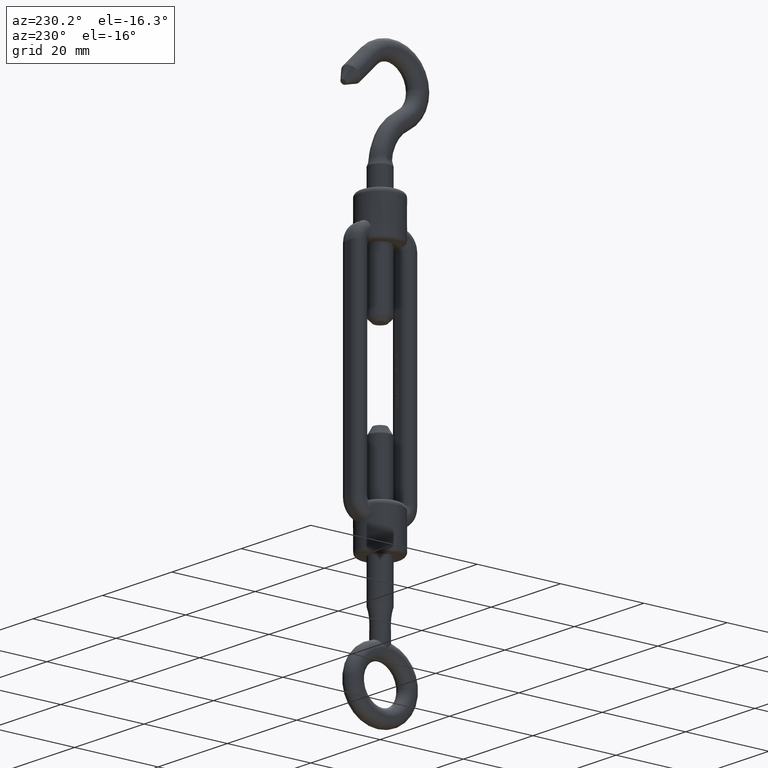
[diagram: clean part render]
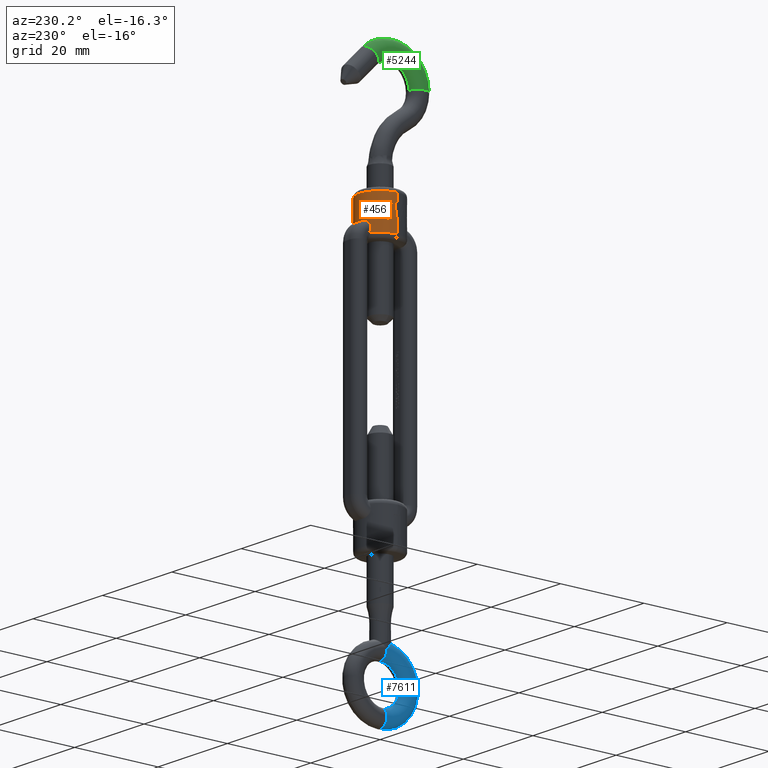
[diagram: same view with three faces highlighted in distinct colors, each labeled with its STEP entity id]
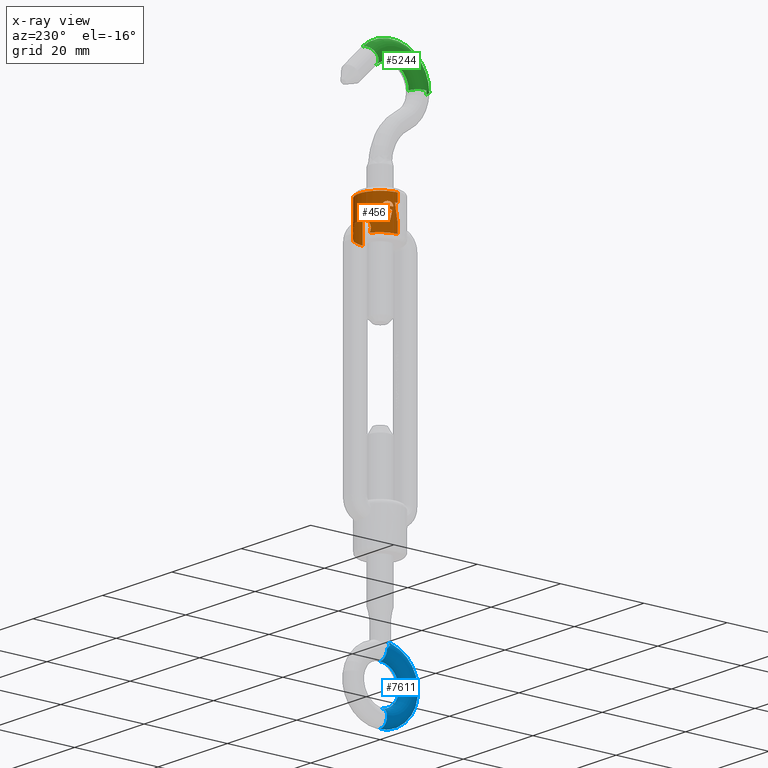
[diagram: x-ray of the same camera — body ghosted, the three highlighted faces saturated]
A machine part, auxiliary view with three faces highlighted in distinct colors.
The next image is the same camera in x-ray (body ghosted, the three faces saturated) — at least one of them is partly hidden behind the body in this view.
Their STEP definitions:

[orange] entity #456 — the highlighted cylindrical surface (edge-blend (fillet) strip) has radius 5 mm, axis along (0, 0, 1).
#20 = CARTESIAN_POINT ( 'NONE',  ( -4.547847931751720200, 2.077776820132446500, 31.45673397461589000 ) ) ;
#38 = ORIENTED_EDGE ( 'NONE', *, *, #16983, .T. ) ;
#65 = AXIS2_PLACEMENT_3D ( 'NONE', #8801, #17608, #13193 ) ;
#158 = VERTEX_POINT ( 'NONE', #13265 ) ;
#182 = CARTESIAN_POINT ( 'NONE',  ( -4.748390467567159800, 1.566137914590384200, 31.14743589743589800 ) ) ;
#192 = VERTEX_POINT ( 'NONE', #10391 ) ;
#217 = CARTESIAN_POINT ( 'NONE',  ( -4.923632694524686200, 0.8705406879679792300, 31.14743589743589800 ) ) ;
#344 = DIRECTION ( 'NONE',  ( 1.000000000000000000, 0.0000000000000000000, 0.0000000000000000000 ) ) ;
#376 = VERTEX_POINT ( 'NONE', #1325 ) ;
#379 = AXIS2_PLACEMENT_3D ( 'NONE', #6061, #1729, #16573 ) ;
#456 = ADVANCED_FACE ( 'NONE', ( #17706, #17224 ), #9224, .T. ) ;
#571 = CARTESIAN_POINT ( 'NONE',  ( 0.0000000000000000000, -6.736790278173455400E-017, 29.08333333333333200 ) ) ;
#585 = CARTESIAN_POINT ( 'NONE',  ( 2.233469516915348700, 4.474192552853914200, 27.98316289257686400 ) ) ;
#619 = CARTESIAN_POINT ( 'NONE',  ( -4.866443798449358500, 1.147921929633702400, 30.44210737179487200 ) ) ;
#661 = CARTESIAN_POINT ( 'NONE',  ( -4.686265706271695900, 1.743252603385065700, 30.47124703100446300 ) ) ;
#709 = CARTESIAN_POINT ( 'NONE',  ( -4.691561607814357200, 1.729080378535241100, 31.36180274351230000 ) ) ;
#739 = CARTESIAN_POINT ( 'NONE',  ( -4.500973887442484900, 2.177521877488870900, 32.07194595432542200 ) ) ;
#773 = B_SPLINE_CURVE_WITH_KNOTS ( 'NONE', 3,
 ( #12509, #5012, #15601, #17114, #2400, #4091, #1084, #14628, #2460, #2589, #889, #7115, #9880, #13094, #5611, #6925, #11592, #11463, #16121, #8498, #18933, #12836, #17373, #15992, #10146, #11397, #6989, #1022, #17505, #17636, #8626, #19126, #1158 ),
 .UNSPECIFIED., .F., .F.,
 ( 4, 2, 1, 2, 2, 2, 2, 2, 2, 2, 2, 2, 2, 1, 1, 2, 2, 4 ),
 ( 0.0000000000000000000, 0.03124999999999445600, 0.04687499999999193000, 0.05468749999999125700, 0.06249999999999057700, 0.1249999999999872000, 0.1874999999999838200, 0.2187499999999809600, 0.2499999999999780700, 0.4999999999999680300, 0.7499999999999579200, 0.8124999999999553700, 0.8749999999999527000, 0.9062499999999514800, 0.9218749999999448200, 0.9296874999999474900, 0.9374999999999502600, 1.000000000000000000 ),
 .UNSPECIFIED. ) ;
#807 = CARTESIAN_POINT ( 'NONE',  ( -4.307182335423731500, 2.539524719474934900, 31.90892555330983200 ) ) ;
#833 = CARTESIAN_POINT ( 'NONE',  ( -4.374699306084623100, 2.421211188455905500, 30.62606336943471400 ) ) ;
#889 = CARTESIAN_POINT ( 'NONE',  ( -4.677951762918342000, 1.765703042302074100, 32.07100246419269500 ) ) ;
#898 = CARTESIAN_POINT ( 'NONE',  ( -4.403730577508783400, 2.367972605650491100, 30.52692569766162500 ) ) ;
#1002 = CARTESIAN_POINT ( 'NONE',  ( -4.024686842278928400, 2.966828768928078600, 31.18547175384010500 ) ) ;
#1011 = B_SPLINE_CURVE_WITH_KNOTS ( 'NONE', 3,
 ( #15286, #7781, #9292, #15095 ),
 .UNSPECIFIED., .F., .F.,
 ( 4, 4 ),
 ( 0.0000000000000000000, 1.000000000000000000 ),
 .UNSPECIFIED. ) ;
#1022 = CARTESIAN_POINT ( 'NONE',  ( -4.918221154271854800, 0.9006121170890756300, 31.26246267358936100 ) ) ;
#1084 = CARTESIAN_POINT ( 'NONE',  ( -4.627469720811204100, 1.893814692360696700, 32.08623076680232300 ) ) ;
#1130 = CARTESIAN_POINT ( 'NONE',  ( -4.590310368100463600, 1.982183322629260200, 32.08974358974359100 ) ) ;
#1158 = CARTESIAN_POINT ( 'NONE',  ( -4.923632694524686200, 0.8705406879679792300, 31.14743589743589800 ) ) ;
#1325 = CARTESIAN_POINT ( 'NONE',  ( -5.000000000000018700, 5.449554967919442900E-016, 26.00000000000000400 ) ) ;
#1390 = CARTESIAN_POINT ( 'NONE',  ( -4.545855342105664200, 2.082114119987081800, 29.71153846153846300 ) ) ;
#1447 = ORIENTED_EDGE ( 'NONE', *, *, #17341, .T. ) ;
#1479 = CARTESIAN_POINT ( 'NONE',  ( -4.566971562811815500, 2.035503531105137900, 31.46069389052945900 ) ) ;
#1663 = CARTESIAN_POINT ( 'NONE',  ( -4.525456171795418000, 2.126152155518455300, 31.44740652032997700 ) ) ;
#1708 = B_SPLINE_CURVE_WITH_KNOTS ( 'NONE', 3,
 ( #1390, #19362, #13607, #11894, #16425, #2901, #18079, #6096, #6039, #10648, #7424, #16550, #7555, #8937, #19430, #10463, #11960, #7868, #16676, #16867, #18378, #16937, #15179, #16738, #3460, #9376, #4773, #3272, #7733, #10967, #16802, #6423, #4644 ),
 .UNSPECIFIED., .F., .F.,
 ( 4, 2, 1, 2, 2, 2, 2, 2, 2, 2, 2, 2, 2, 1, 1, 2, 2, 4 ),
 ( 0.0000000000000000000, 0.03125000000000403800, 0.04687500000000620300, 0.05468750000000671000, 0.06250000000000721600, 0.1250000000000100200, 0.2500000000000156000, 0.3750000000000211500, 0.4375000000000218700, 0.5000000000000226500, 0.6250000000000192100, 0.7500000000000158800, 0.8750000000000124300, 0.9062500000000131000, 0.9218750000000133200, 0.9296875000000164300, 0.9375000000000195400, 1.000000000000000000 ),
 .UNSPECIFIED. ) ;
#1721 = B_SPLINE_CURVE_WITH_KNOTS ( 'NONE', 3,
 ( #182, #7792, #7860, #18370, #7984, #13918, #18496, #10821, #3650, #6881, #17390, #709, #5375, #5239, #8389, #2292, #12721, #11414, #11224, #15750, #15684, #14183 ),
 .UNSPECIFIED., .F., .F.,
 ( 4, 1, 2, 2, 2, 2, 2, 2, 1, 2, 2, 4 ),
 ( 0.0000000000000000000, 0.06250000000000129100, 0.09375000000000167900, 0.1250000000000020800, 0.2500000000000034400, 0.3750000000000047700, 0.5000000000000061100, 0.7500000000000092100, 0.8125000000000103300, 0.8437500000000103300, 0.8750000000000103300, 1.000000000000000000 ),
 .UNSPECIFIED. ) ;
#1729 = DIRECTION ( 'NONE',  ( -0.0000000000000000000, -0.0000000000000000000, 1.000000000000000000 ) ) ;
#1924 = CARTESIAN_POINT ( 'NONE',  ( -4.350447416351549600, 2.464472120689126900, 30.97276381792194800 ) ) ;
#1925 = CARTESIAN_POINT ( 'NONE',  ( -4.631777122602504600, 1.883252687914249700, 29.74519230769231000 ) ) ;
#1935 = CARTESIAN_POINT ( 'NONE',  ( -5.000000000000018700, 5.449554967919442900E-016, 34.00000000000000000 ) ) ;
#1960 = LINE ( 'NONE', #9863, #19080 ) ;
#1980 = ORIENTED_EDGE ( 'NONE', *, *, #18997, .F. ) ;
#2056 = CARTESIAN_POINT ( 'NONE',  ( -4.355356731696153000, 2.455783061893194400, 31.03416895785473900 ) ) ;
#2142 = EDGE_CURVE ( 'NONE', #13076, #14387, #1011, .T. ) ;
#2181 = EDGE_CURVE ( 'NONE', #17951, #10142, #17375, .T. ) ;
#2242 = CARTESIAN_POINT ( 'NONE',  ( -4.679271115013104800, 1.761968896869159100, 30.45475800957746100 ) ) ;
#2292 = CARTESIAN_POINT ( 'NONE',  ( -4.622733292346064000, 1.905414542969046100, 31.44911378548902900 ) ) ;
#2311 = DIRECTION ( 'NONE',  ( 0.0000000000000000000, 0.0000000000000000000, -1.000000000000000000 ) ) ;
#2340 = CARTESIAN_POINT ( 'NONE',  ( -4.614612059040785800, 1.925469406479637600, 29.52457264957265100 ) ) ;
#2382 = CARTESIAN_POINT ( 'NONE',  ( -4.226250151753784900, 2.672476241760782600, 31.78810413073737000 ) ) ;
#2400 = CARTESIAN_POINT ( 'NONE',  ( -4.621230773020333700, 1.909007685060543500, 32.08707302883569700 ) ) ;
#2408 = CARTESIAN_POINT ( 'NONE',  ( -4.005496592939319800, 2.992657187843553900, 30.87189503205128500 ) ) ;
#2410 = CARTESIAN_POINT ( 'NONE',  ( -4.516191030838686300, 2.145713038456369800, 30.35463203149877000 ) ) ;
#2443 = CARTESIAN_POINT ( 'NONE',  ( -4.565501877714305900, 2.038674227184748200, 30.33974358974359500 ) ) ;
#2460 = CARTESIAN_POINT ( 'NONE',  ( -4.643245369456630900, 1.855145208690995400, 32.08369826928560500 ) ) ;
#2472 = CARTESIAN_POINT ( 'NONE',  ( -4.357842965828699500, 2.451390912368033100, 30.72583737488834300 ) ) ;
#2538 = CARTESIAN_POINT ( 'NONE',  ( -4.577854524485199600, 2.011030511949001300, 29.71561413300173300 ) ) ;
#2544 = VERTEX_POINT ( 'NONE', #2408 ) ;
#2570 = CARTESIAN_POINT ( 'NONE',  ( -4.348935503456478300, 2.467135988707538800, 30.89362980769230700 ) ) ;
#2589 = CARTESIAN_POINT ( 'NONE',  ( -4.655947471213633700, 1.822935290975785900, 32.08012549101070500 ) ) ;
#2686 = CARTESIAN_POINT ( 'NONE',  ( -1.917677539172333100, 4.619168442963294700, 28.32554445573938300 ) ) ;
#2730 = CARTESIAN_POINT ( 'NONE',  ( -4.563116247430545300, 2.044428587802525200, 29.71258325890332600 ) ) ;
#2742 = CARTESIAN_POINT ( 'NONE',  ( -2.135582513638207400, 4.522553656526004500, 28.11322632577073900 ) ) ;
#2812 = CARTESIAN_POINT ( 'NONE',  ( -2.230116650190554900, 4.475874942316476500, 27.98815101700086000 ) ) ;
#2894 = ORIENTED_EDGE ( 'NONE', *, *, #11338, .F. ) ;
#2901 = CARTESIAN_POINT ( 'NONE',  ( -4.504710004678786500, 2.169700335914523500, 29.71531857059557800 ) ) ;
#2923 = ORIENTED_EDGE ( 'NONE', *, *, #3337, .T. ) ;
#2942 = ORIENTED_EDGE ( 'NONE', *, *, #11209, .T. ) ;
#2982 = CARTESIAN_POINT ( 'NONE',  ( -0.7499999999999985600, 4.943429983321316000, 28.66920794535225200 ) ) ;
#3029 = B_SPLINE_CURVE_WITH_KNOTS ( 'NONE', 3,
 ( #18833, #3667, #5259, #3735, #15764, #15829, #9589, #585, #17343, #6958, #12929, #17539, #6895, #8405, #7020, #14458 ),
 .UNSPECIFIED., .F., .F.,
 ( 4, 2, 2, 2, 2, 2, 2, 4 ),
 ( 2.133531036578461700E-007, 0.0009502819696181986400, 0.001425316277875464000, 0.001900350586132729200, 0.002375384894389994300, 0.002850419202647259500, 0.003325453510904523900, 0.003800487819161788700 ),
 .UNSPECIFIED. ) ;
#3272 = CARTESIAN_POINT ( 'NONE',  ( -4.008618579884180000, 2.988474057176235800, 30.74353383676579600 ) ) ;
#3327 = DIRECTION ( 'NONE',  ( -0.9157113822914613200, 0.4018366139886476200, 0.0000000000000000000 ) ) ;
#3337 = EDGE_CURVE ( 'NONE', #10130, #2544, #1708, .T. ) ;
#3351 = CARTESIAN_POINT ( 'NONE',  ( -4.403017633905937700, 2.369375678667082800, 31.26041201767335700 ) ) ;
#3389 = EDGE_CURVE ( 'NONE', #158, #17951, #8941, .T. ) ;
#3460 = CARTESIAN_POINT ( 'NONE',  ( -4.013065290434312300, 2.982501297536275200, 30.67055502116997100 ) ) ;
#3481 = CARTESIAN_POINT ( 'NONE',  ( -4.503930581866399900, 2.171379404349107900, 31.43134788285344800 ) ) ;
#3543 = CARTESIAN_POINT ( 'NONE',  ( -4.349294374604149000, 2.466503389822673600, 30.93747067603842600 ) ) ;
#3593 = VERTEX_POINT ( 'NONE', #13050 ) ;
#3650 = CARTESIAN_POINT ( 'NONE',  ( -4.716619830450532900, 1.659451600150522400, 31.29497900086521900 ) ) ;
#3667 = CARTESIAN_POINT ( 'NONE',  ( 2.396436689558278900, 4.389939123186283400, 26.29687017270160300 ) ) ;
#3680 = CARTESIAN_POINT ( 'NONE',  ( -4.513526849275104200, 2.151449747881083200, 32.07678580463616700 ) ) ;
#3735 = CARTESIAN_POINT ( 'NONE',  ( 2.505392440031321200, 4.327019547958214800, 27.08082140526003900 ) ) ;
#3737 = CARTESIAN_POINT ( 'NONE',  ( -4.583560039728276100, 1.997747499339062900, 30.34237236336570800 ) ) ;
#3765 = EDGE_CURVE ( 'NONE', #13676, #16302, #18091, .T. ) ;
#3818 = CARTESIAN_POINT ( 'NONE',  ( -4.007948946388859600, 2.989372056907753500, 30.97535267113950800 ) ) ;
#3834 = CARTESIAN_POINT ( 'NONE',  ( -4.834947997108114000, 1.281443681555632000, 29.79473824786324700 ) ) ;
#3844 = EDGE_CURVE ( 'NONE', #10142, #10130, #15681, .T. ) ;
#3848 = CARTESIAN_POINT ( 'NONE',  ( -4.354331684631096000, 2.457603798810720900, 30.75810333357074100 ) ) ;
#3884 = CARTESIAN_POINT ( 'NONE',  ( -4.424972724771879300, 2.329177843728615500, 32.03011567772475800 ) ) ;
#3972 = CARTESIAN_POINT ( 'NONE',  ( -4.349695354710766200, 2.465796493348255200, 30.84325406283198100 ) ) ;
#4057 = CARTESIAN_POINT ( 'NONE',  ( -0.9098819461953303600, 4.919173250637517600, 28.67906043507274200 ) ) ;
#4088 = CARTESIAN_POINT ( 'NONE',  ( -4.797953918250899000, 1.413668363541982200, 29.14736912393162900 ) ) ;
#4091 = CARTESIAN_POINT ( 'NONE',  ( -4.625057807632678000, 1.899697444879524500, 32.08656940372335200 ) ) ;
#4117 = CARTESIAN_POINT ( 'NONE',  ( -1.790885484525326600, 4.670480343673343500, 28.41607058282420800 ) ) ;
#4134 = CARTESIAN_POINT ( 'NONE',  ( 5.000000000000018700, -6.736790278173455400E-017, 26.00000000000000400 ) ) ;
#4303 = CARTESIAN_POINT ( 'NONE',  ( -2.494936923622247200, 4.333203177100236800, 27.25006801879239000 ) ) ;
#4388 = CARTESIAN_POINT ( 'NONE',  ( -4.999980337142055500, 0.01402241751601422000, 28.50000000000000000 ) ) ;
#4584 = VERTEX_POINT ( 'NONE', #14052 ) ;
#4611 = CARTESIAN_POINT ( 'NONE',  ( 5.000000000000018700, -6.736790278173455400E-017, 34.00000000000000000 ) ) ;
#4644 = CARTESIAN_POINT ( 'NONE',  ( -4.005496592939319800, 2.992657187843553900, 30.87189503205128500 ) ) ;
#4671 = CARTESIAN_POINT ( 'NONE',  ( 0.0000000000000000000, -6.736790278173455400E-017, 26.00000000000000400 ) ) ;
#4750 = CARTESIAN_POINT ( 'NONE',  ( -4.578556911457322800, 2.009183069943245600, 29.08333333333333200 ) ) ;
#4773 = CARTESIAN_POINT ( 'NONE',  ( -4.009254095506159700, 2.987621554251218100, 30.72976765282036700 ) ) ;
#4801 = DIRECTION ( 'NONE',  ( -0.0000000000000000000, -0.0000000000000000000, 1.000000000000000000 ) ) ;
#4841 = VERTEX_POINT ( 'NONE', #4611 ) ;
#5012 = CARTESIAN_POINT ( 'NONE',  ( -4.599267057887501200, 1.961441554941116800, 32.08914714759296800 ) ) ;
#5051 = CARTESIAN_POINT ( 'NONE',  ( -4.648192674844367800, 1.842439214133846800, 30.39659633957560200 ) ) ;
#5060 = CARTESIAN_POINT ( 'NONE',  ( -4.005496592939319800, 2.992657187843553900, 30.87189503205128500 ) ) ;
#5107 = DIRECTION ( 'NONE',  ( -0.0000000000000000000, -0.0000000000000000000, 1.000000000000000000 ) ) ;
#5163 = EDGE_CURVE ( 'NONE', #12953, #9508, #19235, .T. ) ;
#5173 = VERTEX_POINT ( 'NONE', #2982 ) ;
#5229 = CARTESIAN_POINT ( 'NONE',  ( -4.399413916324657900, 2.375972485915834200, 30.53913529308905300 ) ) ;
#5239 = CARTESIAN_POINT ( 'NONE',  ( -4.652840765949522800, 1.831255360179995200, 31.42600438525734000 ) ) ;
#5259 = CARTESIAN_POINT ( 'NONE',  ( 2.480811597676267700, 4.341190113866228600, 26.59919999189919800 ) ) ;
#5298 = CARTESIAN_POINT ( 'NONE',  ( -4.390464427017912300, 2.392469472338238900, 30.56691236515419500 ) ) ;
#5324 = CARTESIAN_POINT ( 'NONE',  ( -4.609274970144576300, 1.937697201975690200, 30.35479709397858600 ) ) ;
#5364 = CARTESIAN_POINT ( 'NONE',  ( -4.431881517081019500, 2.314976755767185900, 30.46016444321156400 ) ) ;
#5375 = CARTESIAN_POINT ( 'NONE',  ( -4.668823842197739700, 1.789961181684757400, 31.40488735843335300 ) ) ;
#5410 = VECTOR ( 'NONE', #9180, 1000.000000000000000 ) ;
#5465 = CARTESIAN_POINT ( 'NONE',  ( -4.569560203122259500, 2.030236243038711300, 32.08828161468798600 ) ) ;
#5495 = CARTESIAN_POINT ( 'NONE',  ( -4.488330363719756900, 2.203436598082031400, 30.37722620241161700 ) ) ;
#5524 = CARTESIAN_POINT ( 'NONE',  ( 0.0000000000000000000, -6.736790278173455400E-017, 28.50000000000000000 ) ) ;
#5525 = VERTEX_POINT ( 'NONE', #217 ) ;
#5530 = EDGE_LOOP ( 'NONE', ( #6005, #19320, #10159, #16726, #7107, #10867, #2942, #15883, #15283, #16779, #38, #14045 ) ) ;
#5591 = DIRECTION ( 'NONE',  ( -0.0000000000000000000, -0.0000000000000000000, 1.000000000000000000 ) ) ;
#5611 = CARTESIAN_POINT ( 'NONE',  ( -4.724612637204121100, 1.636551955736780700, 32.03800198538703400 ) ) ;
#5636 = CARTESIAN_POINT ( 'NONE',  ( -1.066173458228136400, 4.887546965554381700, 28.66845321259097500 ) ) ;
#5752 = CARTESIAN_POINT ( 'NONE',  ( -4.631777122602504600, 1.883252687914249700, 29.74519230769231000 ) ) ;
#5828 = AXIS2_PLACEMENT_3D ( 'NONE', #11614, #13375, #6195 ) ;
#5880 = EDGE_CURVE ( 'NONE', #192, #11528, #10619, .T. ) ;
#6005 = ORIENTED_EDGE ( 'NONE', *, *, #10856, .T. ) ;
#6039 = CARTESIAN_POINT ( 'NONE',  ( -4.483773570782566300, 2.212914442466748200, 29.71926234297428900 ) ) ;
#6061 = CARTESIAN_POINT ( 'NONE',  ( 0.0000000000000000000, -6.736790278173455400E-017, 25.00000000000000000 ) ) ;
#6096 = CARTESIAN_POINT ( 'NONE',  ( -4.500888313939499100, 2.177618741137037400, 29.71594447531892400 ) ) ;
#6172 = CARTESIAN_POINT ( 'NONE',  ( -4.032192113821939600, 2.956590393888261800, 28.50000000000000000 ) ) ;
#6195 = DIRECTION ( 'NONE',  ( 1.000000000000000000, 0.0000000000000000000, 0.0000000000000000000 ) ) ;
#6298 = CARTESIAN_POINT ( 'NONE',  ( -4.565501877714305900, 2.038674227184748200, 30.33974358974359500 ) ) ;
#6301 = AXIS2_PLACEMENT_3D ( 'NONE', #571, #5107, #3327 ) ;
#6342 = CARTESIAN_POINT ( 'NONE',  ( -5.000000000000018700, 5.449554967919442900E-016, 25.00000000000000000 ) ) ;
#6364 = CARTESIAN_POINT ( 'NONE',  ( -4.570939257138535400, 2.026497506823965500, 30.34023566902979100 ) ) ;
#6423 = CARTESIAN_POINT ( 'NONE',  ( -4.006183892682412500, 2.991737277340452900, 30.82291118550757900 ) ) ;
#6443 = CARTESIAN_POINT ( 'NONE',  ( -4.379955491956940800, 2.411652611618198400, 31.18319193044302300 ) ) ;
#6559 = CARTESIAN_POINT ( 'NONE',  ( -4.718126143231637000, 1.655078758414334900, 30.56340144230769300 ) ) ;
#6569 = CARTESIAN_POINT ( 'NONE',  ( -4.006647394020229800, 2.991116497259429100, 30.93230353464480200 ) ) ;
#6702 = CARTESIAN_POINT ( 'NONE',  ( 0.5000544358500965700, 4.981350854810322900, 28.65380541767436300 ) ) ;
#6733 = CARTESIAN_POINT ( 'NONE',  ( -4.467621047224604100, 2.245290930151218500, 30.40058061337087400 ) ) ;
#6768 = CARTESIAN_POINT ( 'NONE',  ( -4.032192113821939600, 2.956590393888261800, 28.50000000000000000 ) ) ;
#6775 = CARTESIAN_POINT ( 'NONE',  ( -4.008284906435596500, 2.988921583874892400, 30.98445826157395200 ) ) ;
#6842 = CIRCLE ( 'NONE', #12313, 5.000000000000017800 ) ;
#6846 = CARTESIAN_POINT ( 'NONE',  ( -4.089249627896613500, 2.877462655062616100, 31.47408092683708600 ) ) ;
#6872 = CARTESIAN_POINT ( 'NONE',  ( -4.519081945688646400, 2.139624185073792300, 30.35286900399136900 ) ) ;
#6881 = CARTESIAN_POINT ( 'NONE',  ( -4.710698184433989700, 1.676208205319076300, 31.31342271418446900 ) ) ;
#6895 = CARTESIAN_POINT ( 'NONE',  ( 1.373415937675255000, 4.810249350732490800, 28.60650508250060000 ) ) ;
#6925 = CARTESIAN_POINT ( 'NONE',  ( -4.729113396489766300, 1.623497449828618300, 32.03387600285315500 ) ) ;
#6958 = CARTESIAN_POINT ( 'NONE',  ( 1.920616988522971400, 4.617954996606050200, 28.32330213461092000 ) ) ;
#6970 = CARTESIAN_POINT ( 'NONE',  ( -4.538351748912190500, 2.098424980753517600, 32.08348940702587300 ) ) ;
#6989 = CARTESIAN_POINT ( 'NONE',  ( -4.917547970269312800, 0.9042859159002458700, 31.27479190649729500 ) ) ;
#7020 = CARTESIAN_POINT ( 'NONE',  ( 0.9101627413635771100, 4.919130649371415300, 28.67907773866189900 ) ) ;
#7030 = CARTESIAN_POINT ( 'NONE',  ( 0.7499999999999983300, 4.943429983321316000, 28.66920794535225200 ) ) ;
#7073 = CARTESIAN_POINT ( 'NONE',  ( -2.289481098319984900, 4.445028267675660900, 26.00000000001850600 ) ) ;
#7099 = LINE ( 'NONE', #12394, #18611 ) ;
#7107 = ORIENTED_EDGE ( 'NONE', *, *, #17222, .T. ) ;
#7115 = CARTESIAN_POINT ( 'NONE',  ( -4.689446777816596200, 1.735055056147820000, 32.06457173378885300 ) ) ;
#7206 = CARTESIAN_POINT ( 'NONE',  ( -1.371883084147458700, 4.810694127354185700, 28.60697782907061900 ) ) ;
#7424 = CARTESIAN_POINT ( 'NONE',  ( -4.416251703593670400, 2.345706683438005600, 29.74664610769264400 ) ) ;
#7441 = EDGE_CURVE ( 'NONE', #9508, #18976, #3029, .T. ) ;
#7461 = ORIENTED_EDGE ( 'NONE', *, *, #2181, .T. ) ;
#7555 = CARTESIAN_POINT ( 'NONE',  ( -4.318738595832512000, 2.520473724588266700, 29.82680494817562800 ) ) ;
#7733 = CARTESIAN_POINT ( 'NONE',  ( -4.008223147457334400, 2.989004401066558200, 30.75272304825244500 ) ) ;
#7775 = CARTESIAN_POINT ( 'NONE',  ( 0.0000000000000000000, -6.736790278173455400E-017, 32.00000000000000000 ) ) ;
#7781 = CARTESIAN_POINT ( 'NONE',  ( -4.999427155767292200, 0.2112705734444028400, 29.66666666666666800 ) ) ;
#7792 = CARTESIAN_POINT ( 'NONE',  ( -4.745912252082710800, 1.573651642898278300, 31.16234212289202100 ) ) ;
#7860 = CARTESIAN_POINT ( 'NONE',  ( -4.742573895525983300, 1.583684380481098900, 31.18179773021002200 ) ) ;
#7868 = CARTESIAN_POINT ( 'NONE',  ( -4.181722756209564900, 2.741130167484041400, 30.03138160619880300 ) ) ;
#7888 = CARTESIAN_POINT ( 'NONE',  ( -4.353739469108999700, 2.458649088937863200, 31.01686973141073300 ) ) ;
#7949 = B_SPLINE_CURVE_WITH_KNOTS ( 'NONE', 3,
 ( #13117, #4057, #5636, #7206, #16209, #4117, #2686, #2742, #2812, #8591, #19088, #4303, #19153, #10105, #14834, #14586 ),
 .UNSPECIFIED., .F., .F.,
 ( 4, 2, 2, 2, 2, 2, 2, 4 ),
 ( 1.998105977674010600E-007, 0.0004793959639572383900, 0.0009585921173167093800, 0.001437788270676180400, 0.001916984424035651500, 0.002396180577395122500, 0.002875376730754593400, 0.003833769037473525000 ),
 .UNSPECIFIED. ) ;
#7968 = DIRECTION ( 'NONE',  ( -0.9999818217309746100, -0.006029610899669460800, 0.0000000000000000000 ) ) ;
#7984 = CARTESIAN_POINT ( 'NONE',  ( -4.738129867539575100, 1.596913411198889600, 31.20599650495247300 ) ) ;
#8140 = CARTESIAN_POINT ( 'NONE',  ( -4.597073676781279900, 1.966471541856162000, 30.34730455349556500 ) ) ;
#8214 = CARTESIAN_POINT ( 'NONE',  ( -4.620021273516536900, 1.912001103565814400, 30.36293718194919600 ) ) ;
#8223 = CARTESIAN_POINT ( 'NONE',  ( -4.136874634120272500, 2.808562285601806400, 31.60550452621684100 ) ) ;
#8240 = VERTEX_POINT ( 'NONE', #7073 ) ;
#8242 = CARTESIAN_POINT ( 'NONE',  ( -4.531136418767234300, 2.113970968146001700, 30.34680155105951700 ) ) ;
#8274 = CARTESIAN_POINT ( 'NONE',  ( 0.2480363298896015000, 5.000099613679106300, 28.64573893943954300 ) ) ;
#8281 = CARTESIAN_POINT ( 'NONE',  ( -4.541104093334452000, 2.092458882291682500, 32.08406549969745200 ) ) ;
#8336 = CARTESIAN_POINT ( 'NONE',  ( -4.587978493729702100, 1.987579870751519800, 30.34354229964432300 ) ) ;
#8373 = CARTESIAN_POINT ( 'NONE',  ( -4.631777122602504600, 1.883252687914249700, 29.74519230769231000 ) ) ;
#8389 = CARTESIAN_POINT ( 'NONE',  ( -4.629742003113285000, 1.888290350111872600, 31.44438819131566000 ) ) ;
#8405 = CARTESIAN_POINT ( 'NONE',  ( 1.068171651813774500, 4.887103383021909100, 28.66821400645472200 ) ) ;
#8471 = CARTESIAN_POINT ( 'NONE',  ( 0.7499999999999983300, 4.943429983321316000, 28.66920794535225200 ) ) ;
#8480 = CARTESIAN_POINT ( 'NONE',  ( -4.373052238910107200, 2.424190826771103000, 31.98324743280514000 ) ) ;
#8498 = CARTESIAN_POINT ( 'NONE',  ( -4.883134413018897400, 1.076742292042244700, 31.64205975810644500 ) ) ;
#8591 = CARTESIAN_POINT ( 'NONE',  ( -2.377316394684303900, 4.399459459101640500, 27.71391264404866600 ) ) ;
#8626 = CARTESIAN_POINT ( 'NONE',  ( -4.920209229803286500, 0.8897077437237963500, 31.22421477555332800 ) ) ;
#8657 = EDGE_CURVE ( 'NONE', #17740, #158, #15656, .T. ) ;
#8734 = CARTESIAN_POINT ( 'NONE',  ( 0.0000000000000000000, -6.736790278173455400E-017, 28.50000000000000000 ) ) ;
#8801 = CARTESIAN_POINT ( 'NONE',  ( 0.0000000000000000000, -6.736790278173455400E-017, 31.14743589743589800 ) ) ;
#8821 = VERTEX_POINT ( 'NONE', #9311 ) ;
#8937 = CARTESIAN_POINT ( 'NONE',  ( -4.287126362151341600, 2.573702653134707100, 29.86326484946956600 ) ) ;
#8941 = CIRCLE ( 'NONE', #6301, 5.000000000000017800 ) ;
#9007 = CIRCLE ( 'NONE', #65, 5.000000000000018700 ) ;
#9023 = CARTESIAN_POINT ( 'NONE',  ( -4.558768184372131500, 2.053762873271455500, 31.45938719742268200 ) ) ;
#9075 = EDGE_CURVE ( 'NONE', #5173, #8240, #7949, .T. ) ;
#9148 = CARTESIAN_POINT ( 'NONE',  ( -4.544438333003620700, 2.085218853928703100, 31.45573403648917900 ) ) ;
#9180 = DIRECTION ( 'NONE',  ( -0.0000000000000000000, -0.0000000000000000000, 1.000000000000000000 ) ) ;
#9224 = CYLINDRICAL_SURFACE ( 'NONE', #379, 5.000000000000018700 ) ;
#9266 = CARTESIAN_POINT ( 'NONE',  ( -4.348935503456478300, 2.467135988707538800, 30.89362980769230700 ) ) ;
#9292 = CARTESIAN_POINT ( 'NONE',  ( -4.987188275030920400, 0.4084853123688496600, 30.83333333333333600 ) ) ;
#9311 = CARTESIAN_POINT ( 'NONE',  ( -5.000000000000018700, 5.449554967919442900E-016, 28.50000000000000000 ) ) ;
#9376 = CARTESIAN_POINT ( 'NONE',  ( -4.011033280030361000, 2.985233281994393600, 30.69776998993937400 ) ) ;
#9397 = CARTESIAN_POINT ( 'NONE',  ( -4.361534525632672300, 2.444799898888046400, 31.08576027906777000 ) ) ;
#9407 = CARTESIAN_POINT ( 'NONE',  ( -4.825987522109837600, 1.319430278780441500, 30.48253872863248000 ) ) ;
#9463 = CARTESIAN_POINT ( 'NONE',  ( -4.352874075353245300, 2.460180533288900900, 31.00619558719815700 ) ) ;
#9493 = AXIS2_PLACEMENT_3D ( 'NONE', #4671, #4801, #344 ) ;
#9508 = VERTEX_POINT ( 'NONE', #12231 ) ;
#9589 = CARTESIAN_POINT ( 'NONE',  ( 2.379636091792327600, 4.398194760767518500, 27.70828295414996100 ) ) ;
#9591 = CARTESIAN_POINT ( 'NONE',  ( -4.688062078802254000, 1.738413547535967200, 30.47567205370309700 ) ) ;
#9757 = CARTESIAN_POINT ( 'NONE',  ( -4.549150436231499800, 2.074935655189092300, 30.34085537510891200 ) ) ;
#9827 = CARTESIAN_POINT ( 'NONE',  ( -4.348935503456478300, 2.467135988707538800, 30.89362980769230700 ) ) ;
#9862 = CARTESIAN_POINT ( 'NONE',  ( -4.069080887026925300, 2.905742900322629400, 31.40515682696317500 ) ) ;
#9863 = CARTESIAN_POINT ( 'NONE',  ( -5.000000000000018700, 5.449554967919442900E-016, 25.00000000000000000 ) ) ;
#9880 = CARTESIAN_POINT ( 'NONE',  ( -4.708034689896272200, 1.683668952375464400, 32.05154016709958100 ) ) ;
#9912 = VERTEX_POINT ( 'NONE', #13098 ) ;
#9949 = EDGE_LOOP ( 'NONE', ( #1980, #12762, #13963, #7461, #15956, #2923, #14664, #1447, #2894, #13038, #17852, #15061, #10237, #12639, #13197 ) ) ;
#10105 = CARTESIAN_POINT ( 'NONE',  ( -2.482270838802231400, 4.340350671650175400, 26.60545416828512400 ) ) ;
#10130 = VERTEX_POINT ( 'NONE', #16891 ) ;
#10142 = VERTEX_POINT ( 'NONE', #1925 ) ;
#10146 = CARTESIAN_POINT ( 'NONE',  ( -4.914361528943231000, 0.9214581889304891400, 31.32695042125105500 ) ) ;
#10159 = ORIENTED_EDGE ( 'NONE', *, *, #11416, .F. ) ;
#10162 = B_SPLINE_CURVE_WITH_KNOTS ( 'NONE', 3,
 ( #8471, #6702, #8274, #18772, #18838, #11245 ),
 .UNSPECIFIED., .F., .F.,
 ( 4, 2, 4 ),
 ( 0.01429650777373118200, 0.01504686889789408700, 0.01579723002205699400 ),
 .UNSPECIFIED. ) ;
#10237 = ORIENTED_EDGE ( 'NONE', *, *, #12192, .T. ) ;
#10391 = CARTESIAN_POINT ( 'NONE',  ( -4.866443798449358500, 1.147921929633702400, 30.44210737179487200 ) ) ;
#10463 = CARTESIAN_POINT ( 'NONE',  ( -4.226216733541821000, 2.672047846516203400, 29.95226997734542400 ) ) ;
#10547 = B_SPLINE_CURVE_WITH_KNOTS ( 'NONE', 3,
 ( #6298, #6364, #12676, #3737, #17207, #8336, #14068, #8140, #12804, #5324, #8214, #18707, #15572, #5051, #12611, #11372, #2242, #12739, #661, #9591, #12545, #18835, #6559 ),
 .UNSPECIFIED., .F., .F.,
 ( 4, 1, 2, 2, 2, 2, 2, 2, 1, 1, 2, 2, 4 ),
 ( 0.0000000000000000000, 0.06250000000000585600, 0.09375000000000922900, 0.1250000000000126000, 0.1875000000000131800, 0.2500000000000125500, 0.3750000000000067200, 0.5000000000000008900, 0.6249999999999950000, 0.6874999999999857900, 0.7187499999999812400, 0.7499999999999765700, 1.000000000000000000 ),
 .UNSPECIFIED. ) ;
#10619 = B_SPLINE_CURVE_WITH_KNOTS ( 'NONE', 3,
 ( #619, #3834, #4088, #13021 ),
 .UNSPECIFIED., .F., .F.,
 ( 4, 4 ),
 ( 0.0000000000000000000, 1.000000000000000000 ),
 .UNSPECIFIED. ) ;
#10648 = CARTESIAN_POINT ( 'NONE',  ( -4.467501331349287100, 2.245626102659883800, 29.72449894873402700 ) ) ;
#10669 = CARTESIAN_POINT ( 'NONE',  ( -4.535988228934784600, 2.103539855762062100, 31.45268509530189900 ) ) ;
#10716 = VECTOR ( 'NONE', #15862, 1000.000000000000000 ) ;
#10808 = LINE ( 'NONE', #6342, #5410 ) ;
#10821 = CARTESIAN_POINT ( 'NONE',  ( -4.727664688926918000, 1.627718903040352900, 31.25493920690038900 ) ) ;
#10856 = EDGE_CURVE ( 'NONE', #8240, #376, #13072, .T. ) ;
#10867 = ORIENTED_EDGE ( 'NONE', *, *, #12903, .T. ) ;
#10944 = EDGE_CURVE ( 'NONE', #9912, #192, #14533, .T. ) ;
#10967 = CARTESIAN_POINT ( 'NONE',  ( -4.007981958685793000, 2.989327792975407800, 30.75888911225592200 ) ) ;
#10990 = CARTESIAN_POINT ( 'NONE',  ( -4.518342794730915400, 2.141228057262026600, 31.44278717284216300 ) ) ;
#11026 = DIRECTION ( 'NONE',  ( -0.0000000000000000000, -0.0000000000000000000, 1.000000000000000000 ) ) ;
#11054 = CARTESIAN_POINT ( 'NONE',  ( -4.370182509954727100, 2.429309738567578600, 31.13856713409532200 ) ) ;
#11137 = B_SPLINE_CURVE_WITH_KNOTS ( 'NONE', 3,
 ( #18156, #1479, #9023, #20, #9148, #13684, #10669, #1663, #10990, #3481, #15388, #18400, #12490, #3351, #18276, #6443, #15516, #11054, #13947, #9397, #12556, #2056, #7888, #9463, #1924, #3543, #9266 ),
 .UNSPECIFIED., .F., .F.,
 ( 4, 2, 2, 2, 2, 2, 2, 2, 2, 2, 1, 2, 2, 4 ),
 ( 0.0000000000000000000, 0.06250000000000841000, 0.09375000000001138000, 0.1250000000000143500, 0.1875000000000175700, 0.2500000000000207600, 0.5000000000000420800, 0.6250000000000522900, 0.6875000000000521800, 0.7500000000000520700, 0.8125000000000519600, 0.8437500000000460700, 0.8750000000000400800, 1.000000000000000000 ),
 .UNSPECIFIED. ) ;
#11209 = EDGE_CURVE ( 'NONE', #11593, #4841, #13315, .T. ) ;
#11224 = CARTESIAN_POINT ( 'NONE',  ( -4.607631742468575100, 1.941583674150591900, 31.45592731009646300 ) ) ;
#11245 = CARTESIAN_POINT ( 'NONE',  ( -0.7499999999999985600, 4.943429983321316000, 28.66920794535225200 ) ) ;
#11319 = CARTESIAN_POINT ( 'NONE',  ( -4.458902129867414700, 2.263641136392732000, 32.05313797547824400 ) ) ;
#11338 = EDGE_CURVE ( 'NONE', #12164, #5525, #9007, .T. ) ;
#11372 = CARTESIAN_POINT ( 'NONE',  ( -4.669266486832140300, 1.788410239740962000, 30.43308210335658300 ) ) ;
#11380 = CARTESIAN_POINT ( 'NONE',  ( -4.258348878220878900, 2.621161329830034700, 31.84111432601529400 ) ) ;
#11397 = CARTESIAN_POINT ( 'NONE',  ( -4.915902575982458200, 0.9132089570752325300, 31.30320503148526600 ) ) ;
#11414 = CARTESIAN_POINT ( 'NONE',  ( -4.610826006566482800, 1.933991190763025600, 31.45475272411964300 ) ) ;
#11416 = EDGE_CURVE ( 'NONE', #13076, #8821, #15226, .T. ) ;
#11463 = CARTESIAN_POINT ( 'NONE',  ( -4.808942857739780600, 1.373252227179107200, 31.92165338357955700 ) ) ;
#11471 = CARTESIAN_POINT ( 'NONE',  ( -4.420303593553987800, 2.336977788170270000, 30.48484780222733900 ) ) ;
#11505 = CARTESIAN_POINT ( 'NONE',  ( -4.036769296636277800, 2.950466863680700300, 31.26088402684729700 ) ) ;
#11528 = VERTEX_POINT ( 'NONE', #15337 ) ;
#11592 = CARTESIAN_POINT ( 'NONE',  ( -4.775566828353282400, 1.486755057599111100, 31.98643709622967500 ) ) ;
#11593 = VERTEX_POINT ( 'NONE', #1935 ) ;
#11614 = CARTESIAN_POINT ( 'NONE',  ( 0.0000000000000000000, -6.736790278173455400E-017, 26.00000000000000400 ) ) ;
#11885 = CARTESIAN_POINT ( 'NONE',  ( -4.578556911457322800, 2.009183069943245600, 29.08333333333333200 ) ) ;
#11894 = CARTESIAN_POINT ( 'NONE',  ( -4.514847035099802700, 2.148543729532002000, 29.71397029822343000 ) ) ;
#11960 = CARTESIAN_POINT ( 'NONE',  ( -4.196741444632263700, 2.718107580624187200, 30.00302794556201700 ) ) ;
#12164 = VERTEX_POINT ( 'NONE', #15258 ) ;
#12192 = EDGE_CURVE ( 'NONE', #16302, #9912, #10547, .T. ) ;
#12231 = CARTESIAN_POINT ( 'NONE',  ( 2.289481098313322200, 4.445028267679094600, 26.00000000000000400 ) ) ;
#12313 = AXIS2_PLACEMENT_3D ( 'NONE', #7775, #16778, #7968 ) ;
#12394 = CARTESIAN_POINT ( 'NONE',  ( 5.000000000000018700, -6.736790278173455400E-017, 25.00000000000000000 ) ) ;
#12425 = CIRCLE ( 'NONE', #18584, 5.000000000000017800 ) ;
#12490 = CARTESIAN_POINT ( 'NONE',  ( -4.434709391194613400, 2.309842890811552300, 31.33974647720893400 ) ) ;
#12509 = CARTESIAN_POINT ( 'NONE',  ( -4.590310368100463600, 1.982183322629260200, 32.08974358974359100 ) ) ;
#12545 = CARTESIAN_POINT ( 'NONE',  ( -4.696741632880386600, 1.714967031582717900, 30.49744471137483600 ) ) ;
#12556 = CARTESIAN_POINT ( 'NONE',  ( -4.358048692587553700, 2.451007492675169700, 31.06005652589695400 ) ) ;
#12611 = CARTESIAN_POINT ( 'NONE',  ( -4.660363965503789200, 1.811431784332152400, 30.41663359785508900 ) ) ;
#12639 = ORIENTED_EDGE ( 'NONE', *, *, #10944, .T. ) ;
#12676 = CARTESIAN_POINT ( 'NONE',  ( -4.578020471861996100, 2.010446200407285800, 30.34116248980974400 ) ) ;
#12712 = CARTESIAN_POINT ( 'NONE',  ( -4.349144604497102900, 2.466767396565261000, 30.87213129658707800 ) ) ;
#12721 = CARTESIAN_POINT ( 'NONE',  ( -4.615604940459392400, 1.922558041356789100, 31.45265505819622800 ) ) ;
#12739 = CARTESIAN_POINT ( 'NONE',  ( -4.683478483847398600, 1.750727049064305400, 30.46458039434406500 ) ) ;
#12749 = CARTESIAN_POINT ( 'NONE',  ( -4.356523249889732200, 2.453771020696113000, 31.96649572318479600 ) ) ;
#12752 = EDGE_CURVE ( 'NONE', #4584, #13676, #11137, .T. ) ;
#12762 = ORIENTED_EDGE ( 'NONE', *, *, #8657, .T. ) ;
#12804 = CARTESIAN_POINT ( 'NONE',  ( -4.604773676208074200, 1.948372681389961800, 30.35173947895200900 ) ) ;
#12817 = CARTESIAN_POINT ( 'NONE',  ( -4.590310368100463600, 1.982183322629260200, 32.08974358974359100 ) ) ;
#12836 = CARTESIAN_POINT ( 'NONE',  ( -4.902919787975448300, 0.9806043099279500000, 31.46796323362414300 ) ) ;
#12881 = CARTESIAN_POINT ( 'NONE',  ( -4.380776515164688700, 2.410215330494333200, 31.99064124834717800 ) ) ;
#12903 = EDGE_CURVE ( 'NONE', #3593, #11593, #1960, .T. ) ;
#12906 = CARTESIAN_POINT ( 'NONE',  ( -4.565501877714305900, 2.038674227184748200, 30.33974358974359500 ) ) ;
#12929 = CARTESIAN_POINT ( 'NONE',  ( 1.793945514977379100, 4.669315782863915100, 28.41415432432325300 ) ) ;
#12935 = CARTESIAN_POINT ( 'NONE',  ( 0.0000000000000000000, -6.736790278173455400E-017, 34.00000000000000000 ) ) ;
#12953 = VERTEX_POINT ( 'NONE', #4134 ) ;
#13021 = CARTESIAN_POINT ( 'NONE',  ( -4.755586756078525200, 1.544148504973115800, 28.50000000000000000 ) ) ;
#13038 = ORIENTED_EDGE ( 'NONE', *, *, #19246, .T. ) ;
#13050 = CARTESIAN_POINT ( 'NONE',  ( -5.000000000000018700, 5.449554967919442900E-016, 32.00000000000000000 ) ) ;
#13072 = CIRCLE ( 'NONE', #9493, 5.000000000000018700 ) ;
#13076 = VERTEX_POINT ( 'NONE', #4388 ) ;
#13094 = CARTESIAN_POINT ( 'NONE',  ( -4.713817785136662900, 1.667389805649558200, 32.04709498853182500 ) ) ;
#13098 = CARTESIAN_POINT ( 'NONE',  ( -4.718126143231637000, 1.655078758414334900, 30.56340144230769300 ) ) ;
#13117 = CARTESIAN_POINT ( 'NONE',  ( -0.7499999999999985600, 4.943429983321316000, 28.66920794535225200 ) ) ;
#13193 = DIRECTION ( 'NONE',  ( -0.9847265389049335600, 0.1741081375935952200, 0.0000000000000000000 ) ) ;
#13197 = ORIENTED_EDGE ( 'NONE', *, *, #5880, .T. ) ;
#13204 = EDGE_CURVE ( 'NONE', #12953, #4841, #7099, .T. ) ;
#13236 = CARTESIAN_POINT ( 'NONE',  ( -4.602872705435792100, 1.953089507650299400, 29.72564803466563500 ) ) ;
#13265 = CARTESIAN_POINT ( 'NONE',  ( -4.032192113821937900, 2.956590393888263200, 29.08333333333333200 ) ) ;
#13315 = CIRCLE ( 'NONE', #13547, 5.000000000000018700 ) ;
#13375 = DIRECTION ( 'NONE',  ( -0.0000000000000000000, -0.0000000000000000000, 1.000000000000000000 ) ) ;
#13495 = EDGE_CURVE ( 'NONE', #2544, #18904, #18601, .T. ) ;
#13547 = AXIS2_PLACEMENT_3D ( 'NONE', #12935, #2311, #17414 ) ;
#13607 = CARTESIAN_POINT ( 'NONE',  ( -4.526610105251040600, 2.123708216135535400, 29.71277663178788200 ) ) ;
#13676 = VERTEX_POINT ( 'NONE', #2570 ) ;
#13684 = CARTESIAN_POINT ( 'NONE',  ( -4.538096468337887000, 2.098984963098033500, 31.45350309918687500 ) ) ;
#13918 = CARTESIAN_POINT ( 'NONE',  ( -4.737677257249432100, 1.598256808172145800, 31.20841050821411100 ) ) ;
#13947 = CARTESIAN_POINT ( 'NONE',  ( -4.366877127673089600, 2.435244159359471800, 31.11986855896537200 ) ) ;
#13963 = ORIENTED_EDGE ( 'NONE', *, *, #3389, .T. ) ;
#14026 = CARTESIAN_POINT ( 'NONE',  ( -4.776456175863252400, 1.488797576630303700, 30.52297008547008500 ) ) ;
#14045 = ORIENTED_EDGE ( 'NONE', *, *, #9075, .T. ) ;
#14052 = CARTESIAN_POINT ( 'NONE',  ( -4.576017638341768100, 2.014959695275618600, 31.46153846153847100 ) ) ;
#14068 = CARTESIAN_POINT ( 'NONE',  ( -4.593353765560591400, 1.975141207757397800, 30.34553244150966800 ) ) ;
#14183 = CARTESIAN_POINT ( 'NONE',  ( -4.576017638341768100, 2.014959695275618600, 31.46153846153847100 ) ) ;
#14304 = CARTESIAN_POINT ( 'NONE',  ( -4.498735061073817000, 2.182162489934767800, 30.36710264124098700 ) ) ;
#14387 = VERTEX_POINT ( 'NONE', #15823 ) ;
#14435 = CARTESIAN_POINT ( 'NONE',  ( -4.386290491106908700, 2.400108359442461900, 30.58131473835109300 ) ) ;
#14458 = CARTESIAN_POINT ( 'NONE',  ( 0.7499999999999983300, 4.943429983321316000, 28.66920794535225200 ) ) ;
#14503 = CARTESIAN_POINT ( 'NONE',  ( -4.350600907840021800, 2.464198088669922600, 30.81943262843101600 ) ) ;
#14533 = B_SPLINE_CURVE_WITH_KNOTS ( 'NONE', 3,
 ( #16967, #14026, #9407, #15658 ),
 .UNSPECIFIED., .F., .F.,
 ( 4, 4 ),
 ( 0.0000000000000000000, 1.000000000000000000 ),
 .UNSPECIFIED. ) ;
#14586 = CARTESIAN_POINT ( 'NONE',  ( -2.289481098319984900, 4.445028267675660900, 26.00000000001850600 ) ) ;
#14628 = CARTESIAN_POINT ( 'NONE',  ( -4.627976904124468900, 1.892577594592031600, 32.08616149090293100 ) ) ;
#14664 = ORIENTED_EDGE ( 'NONE', *, *, #13495, .T. ) ;
#14834 = CARTESIAN_POINT ( 'NONE',  ( -2.397032112436328500, 4.389632441350970600, 26.29852285201871000 ) ) ;
#15061 = ORIENTED_EDGE ( 'NONE', *, *, #3765, .T. ) ;
#15095 = CARTESIAN_POINT ( 'NONE',  ( -4.963349227606609100, 0.6042883788532251700, 32.00000000000000000 ) ) ;
#15179 = CARTESIAN_POINT ( 'NONE',  ( -4.031060785960944400, 2.958220129063529000, 30.50757852496048600 ) ) ;
#15226 = CIRCLE ( 'NONE', #17074, 5.000000000000018700 ) ;
#15258 = CARTESIAN_POINT ( 'NONE',  ( -4.748390467567159800, 1.566137914590384200, 31.14743589743589800 ) ) ;
#15283 = ORIENTED_EDGE ( 'NONE', *, *, #5163, .T. ) ;
#15286 = CARTESIAN_POINT ( 'NONE',  ( -4.999980337142055500, 0.01402241751601422000, 28.50000000000000000 ) ) ;
#15337 = CARTESIAN_POINT ( 'NONE',  ( -4.755586756078525200, 1.544148504973115800, 28.50000000000000000 ) ) ;
#15388 = CARTESIAN_POINT ( 'NONE',  ( -4.495916248169201900, 2.187913854586227100, 31.42376134090259400 ) ) ;
#15516 = CARTESIAN_POINT ( 'NONE',  ( -4.376388437556974200, 2.418111912180885600, 31.16859496453714900 ) ) ;
#15572 = CARTESIAN_POINT ( 'NONE',  ( -4.640858916591312800, 1.860850961930244900, 30.38611075797269500 ) ) ;
#15601 = CARTESIAN_POINT ( 'NONE',  ( -4.606966531908070400, 1.943230980134384800, 32.08852761067337400 ) ) ;
#15656 = LINE ( 'NONE', #6172, #10716 ) ;
#15658 = CARTESIAN_POINT ( 'NONE',  ( -4.866443798449358500, 1.147921929633702400, 30.44210737179487200 ) ) ;
#15681 = B_SPLINE_CURVE_WITH_KNOTS ( 'NONE', 3,
 ( #5752, #17580, #13236, #2538, #2730, #16260 ),
 .UNSPECIFIED., .F., .F.,
 ( 4, 2, 4 ),
 ( 0.0000000000000000000, 0.5000000000000000000, 1.000000000000000000 ),
 .UNSPECIFIED. ) ;
#15684 = CARTESIAN_POINT ( 'NONE',  ( -4.589629757906999800, 1.984046273348737000, 31.46026312249165000 ) ) ;
#15750 = CARTESIAN_POINT ( 'NONE',  ( -4.599507867917626700, 1.960817783445163000, 31.45856884071915300 ) ) ;
#15764 = CARTESIAN_POINT ( 'NONE',  ( 2.495645709016409300, 4.332787632476044600, 27.24311862598023400 ) ) ;
#15778 = CARTESIAN_POINT ( 'NONE',  ( -4.012798729195311300, 2.982866178628659000, 31.06658359953944900 ) ) ;
#15804 = CARTESIAN_POINT ( 'NONE',  ( -4.538210747199435100, 2.098740982981569300, 30.34390839306391600 ) ) ;
#15823 = CARTESIAN_POINT ( 'NONE',  ( -4.963349227606609100, 0.6042883788532251700, 32.00000000000000000 ) ) ;
#15829 = CARTESIAN_POINT ( 'NONE',  ( 2.432993866529957300, 4.368276206754445400, 27.55640571935242600 ) ) ;
#15843 = CARTESIAN_POINT ( 'NONE',  ( -4.528040529936979500, 2.120616901747957300, 32.08102784581440400 ) ) ;
#15862 = DIRECTION ( 'NONE',  ( 0.0000000000000000000, 0.0000000000000000000, 1.000000000000000000 ) ) ;
#15883 = ORIENTED_EDGE ( 'NONE', *, *, #13204, .F. ) ;
#15936 = CARTESIAN_POINT ( 'NONE',  ( -4.455980043537506300, 2.268244478177382300, 30.41753486772750000 ) ) ;
#15956 = ORIENTED_EDGE ( 'NONE', *, *, #3844, .T. ) ;
#15972 = CARTESIAN_POINT ( 'NONE',  ( -4.534231266380084300, 2.107313650049748200, 32.08254490970846000 ) ) ;
#15973 = DIRECTION ( 'NONE',  ( -0.0000000000000000000, -0.0000000000000000000, 1.000000000000000000 ) ) ;
#15992 = CARTESIAN_POINT ( 'NONE',  ( -4.911097067910494800, 0.9387562590883527000, 31.37362957762702800 ) ) ;
#16001 = CARTESIAN_POINT ( 'NONE',  ( -4.527314351025834700, 2.122149394410605300, 30.34859367324500200 ) ) ;
#16033 = DIRECTION ( 'NONE',  ( -0.9511173512157016200, 0.3088297009946220900, 0.0000000000000000000 ) ) ;
#16121 = CARTESIAN_POINT ( 'NONE',  ( -4.863946027511129700, 1.163521435091560100, 31.74633743807588000 ) ) ;
#16209 = CARTESIAN_POINT ( 'NONE',  ( -1.519640293969832800, 4.765642751640734300, 28.55574211271202500 ) ) ;
#16220 = DIRECTION ( 'NONE',  ( -0.0000000000000000000, -0.0000000000000000000, 1.000000000000000000 ) ) ;
#16260 = CARTESIAN_POINT ( 'NONE',  ( -4.545855342105664200, 2.082114119987081800, 29.71153846153846300 ) ) ;
#16302 = VERTEX_POINT ( 'NONE', #2443 ) ;
#16425 = CARTESIAN_POINT ( 'NONE',  ( -4.509423347236452900, 2.159907234145509200, 29.71461130456595300 ) ) ;
#16550 = CARTESIAN_POINT ( 'NONE',  ( -4.383286101823042500, 2.406469157300413600, 29.76818321251039700 ) ) ;
#16573 = DIRECTION ( 'NONE',  ( 1.000000000000000000, 0.0000000000000000000, 0.0000000000000000000 ) ) ;
#16676 = CARTESIAN_POINT ( 'NONE',  ( -4.141143072975697900, 2.802379929401583400, 30.11467985422615700 ) ) ;
#16726 = ORIENTED_EDGE ( 'NONE', *, *, #2142, .T. ) ;
#16738 = CARTESIAN_POINT ( 'NONE',  ( -4.020959117531302400, 2.971868102161697100, 30.58030867952596300 ) ) ;
#16778 = DIRECTION ( 'NONE',  ( -0.0000000000000000000, -0.0000000000000000000, 1.000000000000000000 ) ) ;
#16779 = ORIENTED_EDGE ( 'NONE', *, *, #7441, .T. ) ;
#16802 = CARTESIAN_POINT ( 'NONE',  ( -4.006975170353337400, 2.990677552754009900, 30.78625613916503000 ) ) ;
#16867 = CARTESIAN_POINT ( 'NONE',  ( -4.117038493608475000, 2.837481725361405500, 30.17406093439001700 ) ) ;
#16891 = CARTESIAN_POINT ( 'NONE',  ( -4.545855342105664200, 2.082114119987081800, 29.71153846153846300 ) ) ;
#16937 = CARTESIAN_POINT ( 'NONE',  ( -4.057808752822698000, 2.921421831510163400, 30.36947679250237500 ) ) ;
#16967 = CARTESIAN_POINT ( 'NONE',  ( -4.718126143231637000, 1.655078758414334900, 30.56340144230769300 ) ) ;
#16983 = EDGE_CURVE ( 'NONE', #18976, #5173, #10162, .T. ) ;
#17023 = CARTESIAN_POINT ( 'NONE',  ( -4.005939858955817300, 2.992063902208950600, 30.89801902031868200 ) ) ;
#17074 = AXIS2_PLACEMENT_3D ( 'NONE', #8734, #16220, #19224 ) ;
#17114 = CARTESIAN_POINT ( 'NONE',  ( -4.616767754122372800, 1.919772726539467700, 32.08756366314050000 ) ) ;
#17207 = CARTESIAN_POINT ( 'NONE',  ( -4.586916308559084500, 1.990029267921469700, 30.34324184635324400 ) ) ;
#17221 = CARTESIAN_POINT ( 'NONE',  ( -4.010192276116956800, 2.986363332578466900, 31.02917886091205400 ) ) ;
#17222 = EDGE_CURVE ( 'NONE', #14387, #3593, #6842, .T. ) ;
#17224 = FACE_OUTER_BOUND ( 'NONE', #5530, .T. ) ;
#17251 = CARTESIAN_POINT ( 'NONE',  ( -4.509201356308810000, 2.160363163612144100, 30.35930954653386500 ) ) ;
#17291 = CARTESIAN_POINT ( 'NONE',  ( -4.331769551113225700, 2.497540438832955600, 31.93990515055151400 ) ) ;
#17315 = CARTESIAN_POINT ( 'NONE',  ( -4.368214159782122700, 2.432862054112860100, 30.65795113881441100 ) ) ;
#17341 = EDGE_CURVE ( 'NONE', #18904, #5525, #773, .T. ) ;
#17343 = CARTESIAN_POINT ( 'NONE',  ( 2.139019059966382300, 4.520937450173621000, 28.10923773190316800 ) ) ;
#17354 = CARTESIAN_POINT ( 'NONE',  ( -4.163545120126167700, 2.769153596434891900, 31.66647831935169700 ) ) ;
#17373 = CARTESIAN_POINT ( 'NONE',  ( -4.908485365819750300, 0.9523542794064808700, 31.40659956901643200 ) ) ;
#17375 = B_SPLINE_CURVE_WITH_KNOTS ( 'NONE', 3,
 ( #4750, #18679, #2340, #8373 ),
 .UNSPECIFIED., .F., .F.,
 ( 4, 4 ),
 ( 0.0000000000000000000, 1.000000000000000000 ),
 .UNSPECIFIED. ) ;
#17380 = CARTESIAN_POINT ( 'NONE',  ( -4.556225030393717300, 2.059449230516149600, 30.34008595014631000 ) ) ;
#17390 = CARTESIAN_POINT ( 'NONE',  ( -4.697998514298056700, 1.711479270123342800, 31.34715777349664400 ) ) ;
#17414 = DIRECTION ( 'NONE',  ( -1.000000000000000000, 0.0000000000000000000, 0.0000000000000000000 ) ) ;
#17487 = CARTESIAN_POINT ( 'NONE',  ( -4.008220236499745700, 2.989008294935694200, 30.98269628585242700 ) ) ;
#17505 = CARTESIAN_POINT ( 'NONE',  ( -4.918662910962096300, 0.8981963460740028900, 31.25420936735256200 ) ) ;
#17539 = CARTESIAN_POINT ( 'NONE',  ( 1.522147206561104400, 4.764852387258994100, 28.55478490014212800 ) ) ;
#17580 = CARTESIAN_POINT ( 'NONE',  ( -4.615962675098227700, 1.922147625713613000, 29.73349838167818500 ) ) ;
#17608 = DIRECTION ( 'NONE',  ( -0.0000000000000000000, -0.0000000000000000000, 1.000000000000000000 ) ) ;
#17636 = CARTESIAN_POINT ( 'NONE',  ( -4.918954771489457500, 0.8965960970606904300, 31.24861665455794600 ) ) ;
#17706 = FACE_BOUND ( 'NONE', #9949, .T. ) ;
#17740 = VERTEX_POINT ( 'NONE', #6768 ) ;
#17852 = ORIENTED_EDGE ( 'NONE', *, *, #12752, .T. ) ;
#17951 = VERTEX_POINT ( 'NONE', #11885 ) ;
#18079 = CARTESIAN_POINT ( 'NONE',  ( -4.501727793170512200, 2.175881120400862600, 29.71580480565692600 ) ) ;
#18091 = B_SPLINE_CURVE_WITH_KNOTS ( 'NONE', 3,
 ( #9827, #12712, #3972, #14503, #19008, #18805, #3848, #2472, #17315, #833, #14435, #5298, #5229, #898, #11471, #5364, #15936, #6733, #5495, #14304, #17251, #2410, #6872, #16001, #8242, #15804, #18744, #9757, #17380, #12906 ),
 .UNSPECIFIED., .F., .F.,
 ( 4, 1, 2, 2, 2, 2, 2, 2, 2, 2, 1, 2, 2, 2, 2, 4 ),
 ( 0.0000000000000000000, 0.06250000000000809100, 0.09375000000001208800, 0.1250000000000161000, 0.2500000000000195400, 0.3750000000000229300, 0.4375000000000186500, 0.5000000000000143200, 0.6250000000000075500, 0.7500000000000006700, 0.8124999999999978900, 0.8437499999999986700, 0.8749999999999993300, 0.9062500000000001100, 0.9375000000000007800, 1.000000000000000000 ),
 .UNSPECIFIED. ) ;
#18108 = EDGE_CURVE ( 'NONE', #376, #8821, #10808, .T. ) ;
#18156 = CARTESIAN_POINT ( 'NONE',  ( -4.576017638341768100, 2.014959695275618600, 31.46153846153847100 ) ) ;
#18276 = CARTESIAN_POINT ( 'NONE',  ( -4.392728942709931400, 2.388356371748687800, 31.22924912829613900 ) ) ;
#18370 = CARTESIAN_POINT ( 'NONE',  ( -4.739827370280783800, 1.591867954471925000, 31.19689774122873900 ) ) ;
#18378 = CARTESIAN_POINT ( 'NONE',  ( -4.075553388205081600, 2.896752160524603600, 30.30052092434229700 ) ) ;
#18400 = CARTESIAN_POINT ( 'NONE',  ( -4.462532356733610200, 2.255988496286662300, 31.38799313811501400 ) ) ;
#18496 = CARTESIAN_POINT ( 'NONE',  ( -4.732459056175701000, 1.613691786324603900, 31.23457498335914900 ) ) ;
#18584 = AXIS2_PLACEMENT_3D ( 'NONE', #5524, #5591, #16033 ) ;
#18601 = B_SPLINE_CURVE_WITH_KNOTS ( 'NONE', 3,
 ( #5060, #17023, #6569, #18848, #3818, #17487, #6775, #17221, #15778, #1002, #11505, #9862, #6846, #8223, #17354, #2382, #11380, #807, #17291, #12749, #8480, #12881, #3884, #11319, #739, #3680, #15843, #15972, #6970, #8281, #18777, #5465, #12817 ),
 .UNSPECIFIED., .F., .F.,
 ( 4, 1, 1, 2, 2, 2, 2, 2, 2, 2, 1, 2, 2, 2, 1, 1, 2, 2, 4 ),
 ( 0.0000000000000000000, 0.03125000000000107600, 0.04687500000000163100, 0.05468750000000190100, 0.06250000000000217900, 0.1249999999999990000, 0.2499999999999924500, 0.3749999999999858400, 0.4999999999999792900, 0.6249999999999728000, 0.6874999999999724700, 0.7187499999999754600, 0.7499999999999783500, 0.8749999999999803500, 0.9062499999999823500, 0.9218749999999830100, 0.9296874999999839000, 0.9374999999999849000, 1.000000000000000000 ),
 .UNSPECIFIED. ) ;
#18611 = VECTOR ( 'NONE', #11026, 1000.000000000000000 ) ;
#18679 = CARTESIAN_POINT ( 'NONE',  ( -4.596869777980243700, 1.967451431427357700, 29.30395299145299100 ) ) ;
#18707 = CARTESIAN_POINT ( 'NONE',  ( -4.627053490476991500, 1.894917882781864000, 30.36974258727939700 ) ) ;
#18744 = CARTESIAN_POINT ( 'NONE',  ( -4.542082293049314300, 2.090339771264011900, 30.34265010939260800 ) ) ;
#18772 = CARTESIAN_POINT ( 'NONE',  ( -0.2520362954604741200, 4.999899586334668000, 28.64582337413579400 ) ) ;
#18777 = CARTESIAN_POINT ( 'NONE',  ( -4.553326595677501300, 2.065887893914273700, 32.08647828024856400 ) ) ;
#18805 = CARTESIAN_POINT ( 'NONE',  ( -4.351521566760935900, 2.462572101938654200, 30.79997792196098400 ) ) ;
#18833 = CARTESIAN_POINT ( 'NONE',  ( 2.289481098313322200, 4.445028267679094600, 26.00000000000000400 ) ) ;
#18835 = CARTESIAN_POINT ( 'NONE',  ( -4.706545034522482000, 1.688092976916312200, 30.52588144618111000 ) ) ;
#18838 = CARTESIAN_POINT ( 'NONE',  ( -0.5013698297990524200, 4.981151287816342000, 28.65388647689130500 ) ) ;
#18848 = CARTESIAN_POINT ( 'NONE',  ( -4.007547321989567200, 2.989910501359392700, 30.96372456556078100 ) ) ;
#18904 = VERTEX_POINT ( 'NONE', #1130 ) ;
#18933 = CARTESIAN_POINT ( 'NONE',  ( -4.899869430528219100, 0.9957675644787027400, 31.49773647780610700 ) ) ;
#18976 = VERTEX_POINT ( 'NONE', #7030 ) ;
#18997 = EDGE_CURVE ( 'NONE', #17740, #11528, #12425, .T. ) ;
#19008 = CARTESIAN_POINT ( 'NONE',  ( -4.351283285710562300, 2.462992944975440900, 30.80467518313128400 ) ) ;
#19080 = VECTOR ( 'NONE', #15973, 1000.000000000000000 ) ;
#19088 = CARTESIAN_POINT ( 'NONE',  ( -2.430748074337832200, 4.369533593644539400, 27.56406844131499100 ) ) ;
#19126 = CARTESIAN_POINT ( 'NONE',  ( -4.921733923546323600, 0.8812798194039845900, 31.19139162980911100 ) ) ;
#19153 = CARTESIAN_POINT ( 'NONE',  ( -2.505241096405642900, 4.327105864939744300, 27.08943584033039900 ) ) ;
#19224 = DIRECTION ( 'NONE',  ( -0.9920294417535008300, -0.1260062962483923800, 0.0000000000000000000 ) ) ;
#19235 = CIRCLE ( 'NONE', #5828, 5.000000000000018700 ) ;
#19246 = EDGE_CURVE ( 'NONE', #12164, #4584, #1721, .T. ) ;
#19320 = ORIENTED_EDGE ( 'NONE', *, *, #18108, .T. ) ;
#19362 = CARTESIAN_POINT ( 'NONE',  ( -4.535675074830119300, 2.104340578150135000, 29.71209864916350800 ) ) ;
#19430 = CARTESIAN_POINT ( 'NONE',  ( -4.241251804562700100, 2.648137567847479900, 29.92867825160245600 ) ) ;

[blue] entity #7611 — the highlighted toroidal blend (fillet) surface has major radius 6.5 mm and minor (blend) radius 2 mm.
#186 = CARTESIAN_POINT ( 'NONE',  ( 1.097261737811012100, -16.01947507868676000, -1.692257849355755400 ) ) ;
#394 = TOROIDAL_SURFACE ( 'NONE', #18067, 6.500000000000000900, 2.000000000000000000 ) ;
#480 = DIRECTION ( 'NONE',  ( 0.0000000000000000000, 1.000000000000000000, 1.423099621949588500E-016 ) ) ;
#725 = ORIENTED_EDGE ( 'NONE', *, *, #3245, .F. ) ;
#728 = VERTEX_POINT ( 'NONE', #14263 ) ;
#1353 = FACE_OUTER_BOUND ( 'NONE', #5921, .T. ) ;
#1526 = DIRECTION ( 'NONE',  ( -1.000000000000000000, 0.0000000000000000000, 0.0000000000000000000 ) ) ;
#1578 = B_SPLINE_CURVE_WITH_KNOTS ( 'NONE', 3,
 ( #13794, #3089, #4772, #15305, #6286, #7672, #186, #16801, #15178, #1579, #7732, #18310, #18193, #9193, #10765, #10706 ),
 .UNSPECIFIED., .F., .F.,
 ( 4, 2, 2, 2, 2, 2, 2, 4 ),
 ( -8.944277769999931100E-006, 0.0004511171649843308400, 0.0009111786077386614900, 0.001831301493247322800, 0.002291362936001656300, 0.002751424378755989400, 0.003211485821510322900, 0.003671547264264656000 ),
 .UNSPECIFIED. ) ;
#1579 = CARTESIAN_POINT ( 'NONE',  ( 1.657380450484703600, -16.48753822690341800, -1.127758403733279300 ) ) ;
#1627 = CARTESIAN_POINT ( 'NONE',  ( 7.642090019328551900E-027, -15.00000000000000200, -2.000000000000000900 ) ) ;
#1853 = AXIS2_PLACEMENT_3D ( 'NONE', #9070, #1526, #11897 ) ;
#2223 = CARTESIAN_POINT ( 'NONE',  ( 0.0000000000000000000, -8.500000000000000000, -9.250147542672325800E-016 ) ) ;
#2279 = CIRCLE ( 'NONE', #16306, 8.500000000000000000 ) ;
#3089 = CARTESIAN_POINT ( 'NONE',  ( 0.1084639514558707300, -15.10841122176938500, -2.000000000000000400 ) ) ;
#3245 = EDGE_CURVE ( 'NONE', #17356, #728, #18109, .T. ) ;
#4772 = CARTESIAN_POINT ( 'NONE',  ( 0.2194325119988638800, -15.21666998429080300, -1.991065280339214800 ) ) ;
#5475 = CIRCLE ( 'NONE', #1853, 2.000000000000000000 ) ;
#5493 = CIRCLE ( 'NONE', #13307, 2.000000000000000000 ) ;
#5921 = EDGE_LOOP ( 'NONE', ( #13738, #15122, #15188, #8841, #725 ) ) ;
#6286 = CARTESIAN_POINT ( 'NONE',  ( 0.5504013813404763400, -15.52960596842679500, -1.926332974383444500 ) ) ;
#6564 = AXIS2_PLACEMENT_3D ( 'NONE', #12946, #14344, #9866 ) ;
#6810 = DIRECTION ( 'NONE',  ( 0.0000000000000000000, 1.000000000000000000, 1.423099621949588200E-016 ) ) ;
#7293 = DIRECTION ( 'NONE',  ( 1.000000000000000000, 1.224646799147353200E-016, 1.742794396888371800E-032 ) ) ;
#7484 = CARTESIAN_POINT ( 'NONE',  ( 7.960204194457796500E-016, -15.00000000000000200, -1.850029508534465200E-015 ) ) ;
#7611 = ADVANCED_FACE ( 'NONE', ( #1353 ), #394, .T. ) ;
#7672 = CARTESIAN_POINT ( 'NONE',  ( 0.8818229721321451100, -15.83173015688551300, -1.810301047045323400 ) ) ;
#7732 = CARTESIAN_POINT ( 'NONE',  ( 1.734532125466614800, -16.54993957519637600, -1.006256112382662500 ) ) ;
#8213 = EDGE_CURVE ( 'NONE', #12505, #17994, #2279, .T. ) ;
#8233 = CARTESIAN_POINT ( 'NONE',  ( 0.0000000000000000000, -4.000000000000000000, -6.800853944377618900E-016 ) ) ;
#8726 = EDGE_CURVE ( 'NONE', #12342, #17994, #1578, .T. ) ;
#8841 = ORIENTED_EDGE ( 'NONE', *, *, #12961, .T. ) ;
#9070 = CARTESIAN_POINT ( 'NONE',  ( 0.0000000000000000000, -2.000000000000000000, 0.0000000000000000000 ) ) ;
#9193 = CARTESIAN_POINT ( 'NONE',  ( 1.982321625739466700, -16.74748074521187000, -0.3062512173180159700 ) ) ;
#9866 = DIRECTION ( 'NONE',  ( 0.0000000000000000000, 1.000000000000000000, 1.423099621949588200E-016 ) ) ;
#10020 = DIRECTION ( 'NONE',  ( -0.0000000000000000000, 1.423099621949588200E-016, -1.000000000000000000 ) ) ;
#10706 = CARTESIAN_POINT ( 'NONE',  ( 2.000000000000000000, -16.76135582092915400, -6.438341219959649200E-015 ) ) ;
#10765 = CARTESIAN_POINT ( 'NONE',  ( 2.000000000000031100, -16.76135582092934600, -0.1545514687070913600 ) ) ;
#11897 = DIRECTION ( 'NONE',  ( 0.0000000000000000000, 0.0000000000000000000, 1.000000000000000000 ) ) ;
#12342 = VERTEX_POINT ( 'NONE', #1627 ) ;
#12505 = VERTEX_POINT ( 'NONE', #14041 ) ;
#12946 = CARTESIAN_POINT ( 'NONE',  ( 0.0000000000000000000, -8.500000000000000000, -6.800853944377618900E-016 ) ) ;
#12961 = EDGE_CURVE ( 'NONE', #12342, #728, #5493, .T. ) ;
#12967 = CARTESIAN_POINT ( 'NONE',  ( 0.0000000000000000000, -8.500000000000000000, -9.250147542672325800E-016 ) ) ;
#13307 = AXIS2_PLACEMENT_3D ( 'NONE', #7484, #7293, #14794 ) ;
#13738 = ORIENTED_EDGE ( 'NONE', *, *, #14120, .F. ) ;
#13794 = CARTESIAN_POINT ( 'NONE',  ( 7.642090019328551900E-027, -15.00000000000000200, -2.000000000000000900 ) ) ;
#14041 = CARTESIAN_POINT ( 'NONE',  ( 0.0000000000000000000, 0.0000000000000000000, 2.846199243899175500E-016 ) ) ;
#14120 = EDGE_CURVE ( 'NONE', #12505, #17356, #5475, .T. ) ;
#14248 = DIRECTION ( 'NONE',  ( -0.0000000000000000000, 1.423099621949588200E-016, -1.000000000000000000 ) ) ;
#14263 = CARTESIAN_POINT ( 'NONE',  ( 5.510910596163090500E-016, -13.00000000000000200, -6.800853944377618900E-016 ) ) ;
#14344 = DIRECTION ( 'NONE',  ( -0.0000000000000000000, 1.423099621949588200E-016, -1.000000000000000000 ) ) ;
#14794 = DIRECTION ( 'NONE',  ( -1.224646799147353000E-016, 1.000000000000000000, 0.0000000000000000000 ) ) ;
#15122 = ORIENTED_EDGE ( 'NONE', *, *, #8213, .T. ) ;
#15178 = CARTESIAN_POINT ( 'NONE',  ( 1.488215816540941800, -16.34867037688388100, -1.343116770142228400 ) ) ;
#15188 = ORIENTED_EDGE ( 'NONE', *, *, #8726, .F. ) ;
#15305 = CARTESIAN_POINT ( 'NONE',  ( 0.4399063263938370300, -15.42674636932865100, -1.954219537793306900 ) ) ;
#16306 = AXIS2_PLACEMENT_3D ( 'NONE', #12967, #10020, #480 ) ;
#16481 = CARTESIAN_POINT ( 'NONE',  ( 2.000000000000000000, -16.76135582092915400, -6.438341219959649200E-015 ) ) ;
#16801 = CARTESIAN_POINT ( 'NONE',  ( 1.394645020840744400, -16.27093372689483500, -1.439407952366772000 ) ) ;
#17356 = VERTEX_POINT ( 'NONE', #8233 ) ;
#17994 = VERTEX_POINT ( 'NONE', #16481 ) ;
#18067 = AXIS2_PLACEMENT_3D ( 'NONE', #2223, #14248, #6810 ) ;
#18109 = CIRCLE ( 'NONE', #6564, 4.500000000000000900 ) ;
#18193 = CARTESIAN_POINT ( 'NONE',  ( 1.912710308642841200, -16.69243501777002300, -0.6040928001512180200 ) ) ;
#18310 = CARTESIAN_POINT ( 'NONE',  ( 1.861864233863199900, -16.65210675675118800, -0.7447245347403298500 ) ) ;

[green] entity #5244 — the highlighted toroidal blend (fillet) surface has major radius 6.85 mm and minor (blend) radius 2.15 mm.
#410 = AXIS2_PLACEMENT_3D ( 'NONE', #8534, #5585, #4067 ) ;
#687 = TOROIDAL_SURFACE ( 'NONE', #410, 6.850000000000001400, 2.150000000000000400 ) ;
#793 = VERTEX_POINT ( 'NONE', #5603 ) ;
#1430 = CIRCLE ( 'NONE', #14270, 2.150000000000000400 ) ;
#2302 = ORIENTED_EDGE ( 'NONE', *, *, #13921, .F. ) ;
#2422 = DIRECTION ( 'NONE',  ( 0.0000000000000000000, -1.000000000000000000, 0.0000000000000000000 ) ) ;
#2426 = CARTESIAN_POINT ( 'NONE',  ( 0.0000000000000000000, -9.000000000000000000, 0.0000000000000000000 ) ) ;
#3627 = EDGE_CURVE ( 'NONE', #10338, #7604, #1430, .T. ) ;
#3785 = CARTESIAN_POINT ( 'NONE',  ( -3.323401871576802300, -5.676598128423251000, 0.0000000000000000000 ) ) ;
#4067 = DIRECTION ( 'NONE',  ( 1.000000000000000000, 0.0000000000000000000, 0.0000000000000000000 ) ) ;
#4204 = AXIS2_PLACEMENT_3D ( 'NONE', #7517, #14028, #10684 ) ;
#5244 = ADVANCED_FACE ( 'NONE', ( #13140 ), #687, .T. ) ;
#5248 = ORIENTED_EDGE ( 'NONE', *, *, #3627, .T. ) ;
#5585 = DIRECTION ( 'NONE',  ( 0.0000000000000000000, 0.0000000000000000000, 1.000000000000000000 ) ) ;
#5603 = CARTESIAN_POINT ( 'NONE',  ( 4.700000000000001100, -9.000000000000000000, -2.632990618166810200E-016 ) ) ;
#6589 = AXIS2_PLACEMENT_3D ( 'NONE', #2426, #14389, #11421 ) ;
#6974 = CARTESIAN_POINT ( 'NONE',  ( -6.363961030678987100, -2.636038969321125200, 2.632990618166809700E-016 ) ) ;
#7517 = CARTESIAN_POINT ( 'NONE',  ( 0.0000000000000000000, -9.000000000000000000, -2.632990618166809700E-016 ) ) ;
#7604 = VERTEX_POINT ( 'NONE', #3785 ) ;
#7857 = ORIENTED_EDGE ( 'NONE', *, *, #8987, .T. ) ;
#8444 = EDGE_CURVE ( 'NONE', #793, #7604, #17063, .T. ) ;
#8534 = CARTESIAN_POINT ( 'NONE',  ( 0.0000000000000000000, -9.000000000000000000, 0.0000000000000000000 ) ) ;
#8650 = DIRECTION ( 'NONE',  ( 0.0000000000000000000, 0.0000000000000000000, -1.000000000000000000 ) ) ;
#8987 = EDGE_CURVE ( 'NONE', #16590, #10338, #10503, .T. ) ;
#9906 = DIRECTION ( 'NONE',  ( 0.0000000000000000000, 0.0000000000000000000, -1.000000000000000000 ) ) ;
#10338 = VERTEX_POINT ( 'NONE', #6974 ) ;
#10503 = CIRCLE ( 'NONE', #6589, 9.000000000000001800 ) ;
#10684 = DIRECTION ( 'NONE',  ( 1.000000000000000000, 0.0000000000000000000, 0.0000000000000000000 ) ) ;
#11421 = DIRECTION ( 'NONE',  ( 1.000000000000000000, 0.0000000000000000000, 0.0000000000000000000 ) ) ;
#13140 = FACE_OUTER_BOUND ( 'NONE', #17870, .T. ) ;
#13176 = CARTESIAN_POINT ( 'NONE',  ( -4.843681451127894300, -4.156318548872188300, 0.0000000000000000000 ) ) ;
#13921 = EDGE_CURVE ( 'NONE', #16590, #793, #16291, .T. ) ;
#14028 = DIRECTION ( 'NONE',  ( 0.0000000000000000000, 0.0000000000000000000, 1.000000000000000000 ) ) ;
#14270 = AXIS2_PLACEMENT_3D ( 'NONE', #13176, #17659, #8650 ) ;
#14389 = DIRECTION ( 'NONE',  ( 0.0000000000000000000, 0.0000000000000000000, 1.000000000000000000 ) ) ;
#16010 = CARTESIAN_POINT ( 'NONE',  ( 6.850000000000001400, -9.000000000000000000, 0.0000000000000000000 ) ) ;
#16291 = CIRCLE ( 'NONE', #18962, 2.150000000000000400 ) ;
#16590 = VERTEX_POINT ( 'NONE', #16791 ) ;
#16791 = CARTESIAN_POINT ( 'NONE',  ( 9.000000000000001800, -9.000000000000000000, 0.0000000000000000000 ) ) ;
#17063 = CIRCLE ( 'NONE', #4204, 4.700000000000001100 ) ;
#17659 = DIRECTION ( 'NONE',  ( 0.7071067811865408000, 0.7071067811865542300, 0.0000000000000000000 ) ) ;
#17870 = EDGE_LOOP ( 'NONE', ( #2302, #7857, #5248, #18317 ) ) ;
#18317 = ORIENTED_EDGE ( 'NONE', *, *, #8444, .F. ) ;
#18962 = AXIS2_PLACEMENT_3D ( 'NONE', #16010, #2422, #9906 ) ;